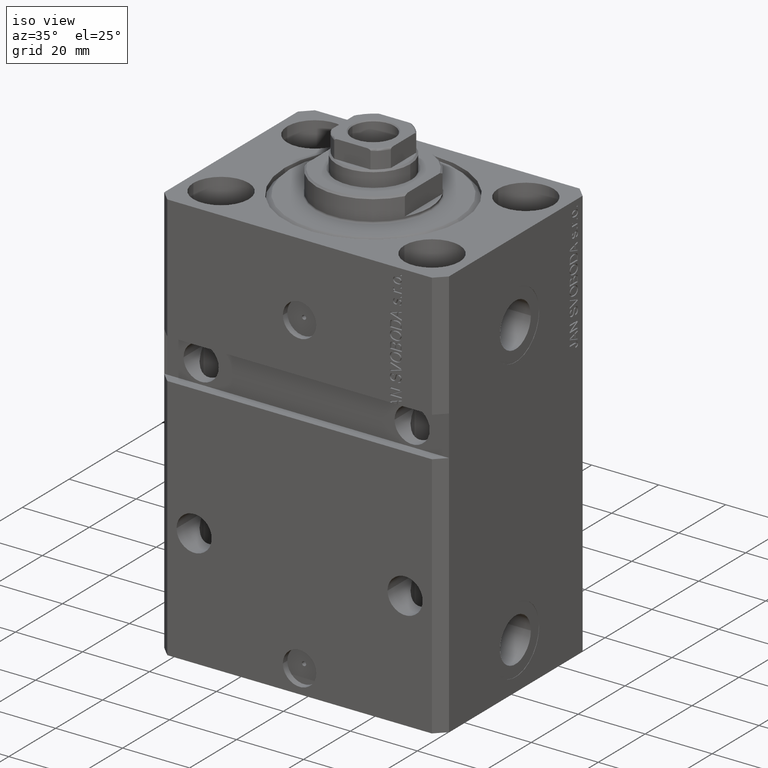
[diagram: clean part render]
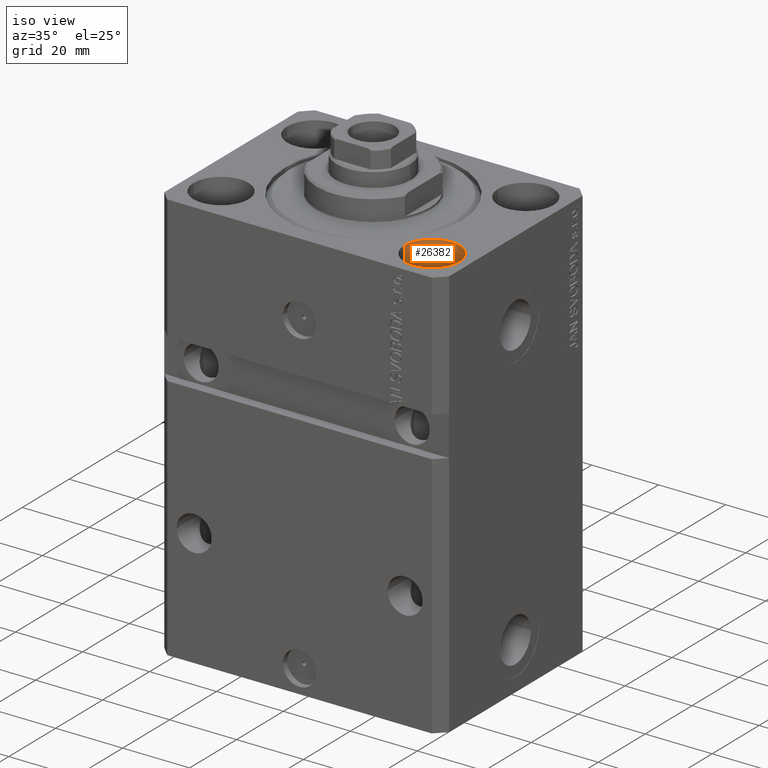
[diagram: same view with one face highlighted and labeled with its STEP entity id]
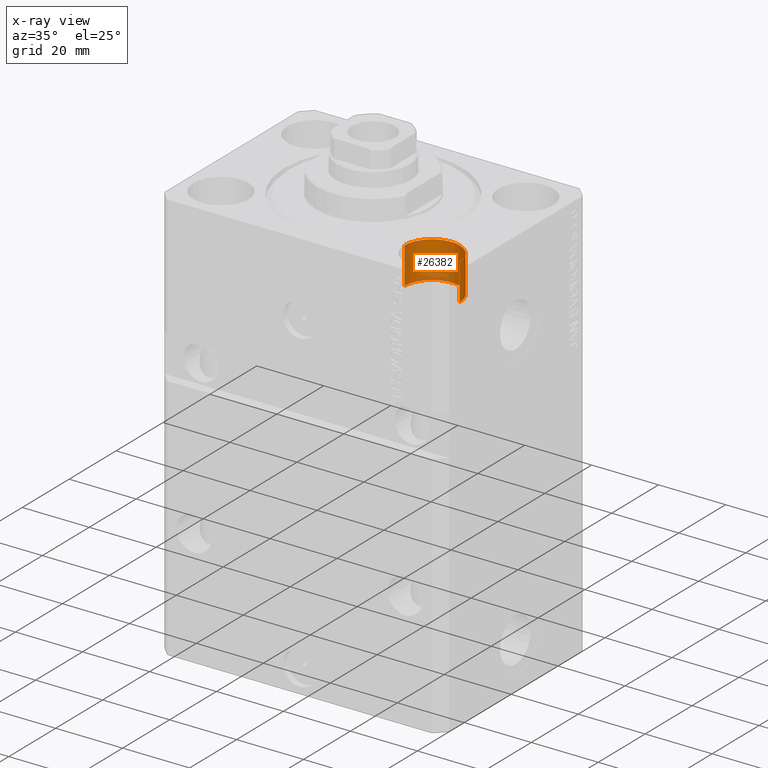
[diagram: x-ray of the same camera — body ghosted, the highlighted face saturated]
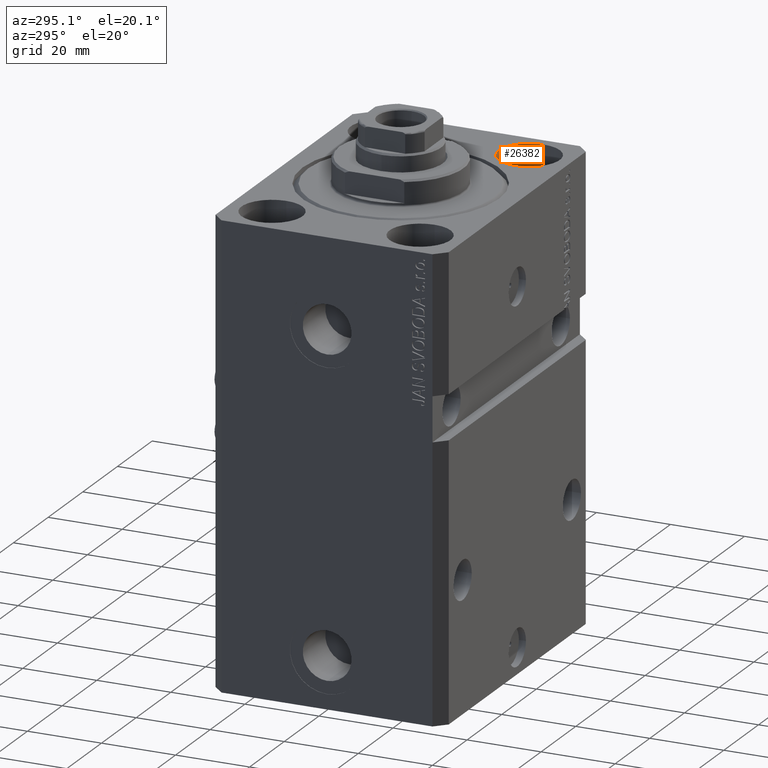
[diagram: same view with one face highlighted and labeled with its STEP entity id]
A machine part, iso view. The second image highlights one B-rep face of the part: STEP entity #26382.
The next image is the same camera in x-ray: the body ghosted, the highlighted face saturated — about 9% of this face is hidden behind the body in this view.
A second angle (auxiliary view) of the same face is appended — the face is thin or edge-on in the first view.
In plain terms, the highlighted cylindrical surface (edge-blend (fillet) strip) has radius 8.25 mm, axis along (0, 0, 1).
Its self-contained STEP definition (entity closure, byte-faithful):
#327 = CARTESIAN_POINT ( 'NONE',  ( 31.50000000000000000, -20.00000000000000000, -11.00000000000000000 ) ) ;
#709 = LINE ( 'NONE', #15709, #34811 ) ;
#1998 = CARTESIAN_POINT ( 'NONE',  ( 23.25000000000000355, -20.00000000000000000, -11.00000000000000000 ) ) ;
#2237 = LINE ( 'NONE', #1998, #4217 ) ;
#3343 = DIRECTION ( 'NONE',  ( -0.000000000000000000, -0.000000000000000000, 1.000000000000000000 ) ) ;
#3503 = EDGE_CURVE ( 'NONE', #40766, #36043, #4810, .T. ) ;
#3777 = CARTESIAN_POINT ( 'NONE',  ( 23.25000000000000355, -20.00000000000000000, 0.000000000000000000 ) ) ;
#4059 = ORIENTED_EDGE ( 'NONE', *, *, #3503, .F. ) ;
#4217 = VECTOR ( 'NONE', #39134, 1000.000000000000000 ) ;
#4810 = CIRCLE ( 'NONE', #6390, 8.249999999999992895 ) ;
#6390 = AXIS2_PLACEMENT_3D ( 'NONE', #327, #42366, #7939 ) ;
#6929 = ORIENTED_EDGE ( 'NONE', *, *, #8731, .F. ) ;
#7939 = DIRECTION ( 'NONE',  ( 1.000000000000000000, 0.000000000000000000, 0.000000000000000000 ) ) ;
#8731 = EDGE_CURVE ( 'NONE', #36043, #19932, #2237, .T. ) ;
#8974 = AXIS2_PLACEMENT_3D ( 'NONE', #45984, #20170, #22872 ) ;
#10022 = DIRECTION ( 'NONE',  ( 1.000000000000000000, 0.000000000000000000, 0.000000000000000000 ) ) ;
#14435 = CARTESIAN_POINT ( 'NONE',  ( 31.50000000000000000, -20.00000000000000000, -11.00000000000000000 ) ) ;
#15709 = CARTESIAN_POINT ( 'NONE',  ( 39.74999999999999289, -20.00000000000000000, -11.00000000000000000 ) ) ;
#18595 = ORIENTED_EDGE ( 'NONE', *, *, #29767, .T. ) ;
#19932 = VERTEX_POINT ( 'NONE', #3777 ) ;
#20170 = DIRECTION ( 'NONE',  ( 0.000000000000000000, 0.000000000000000000, 1.000000000000000000 ) ) ;
#22872 = DIRECTION ( 'NONE',  ( 1.000000000000000000, 0.000000000000000000, 0.000000000000000000 ) ) ;
#26246 = CIRCLE ( 'NONE', #8974, 8.249999999999992895 ) ;
#26382 = ADVANCED_FACE ( 'NONE', ( #36805 ), #48118, .F. ) ;
#28345 = CARTESIAN_POINT ( 'NONE',  ( 39.74999999999999289, -20.00000000000000000, -11.00000000000000000 ) ) ;
#29767 = EDGE_CURVE ( 'NONE', #40766, #30460, #709, .T. ) ;
#30086 = AXIS2_PLACEMENT_3D ( 'NONE', #14435, #3343, #10022 ) ;
#30460 = VERTEX_POINT ( 'NONE', #46093 ) ;
#30728 = DIRECTION ( 'NONE',  ( -0.000000000000000000, -0.000000000000000000, 1.000000000000000000 ) ) ;
#32884 = EDGE_CURVE ( 'NONE', #30460, #19932, #26246, .T. ) ;
#34811 = VECTOR ( 'NONE', #30728, 1000.000000000000000 ) ;
#34938 = CARTESIAN_POINT ( 'NONE',  ( 23.25000000000000355, -20.00000000000000000, -11.00000000000000000 ) ) ;
#36043 = VERTEX_POINT ( 'NONE', #34938 ) ;
#36246 = EDGE_LOOP ( 'NONE', ( #6929, #4059, #18595, #38854 ) ) ;
#36805 = FACE_OUTER_BOUND ( 'NONE', #36246, .T. ) ;
#38854 = ORIENTED_EDGE ( 'NONE', *, *, #32884, .T. ) ;
#39134 = DIRECTION ( 'NONE',  ( -0.000000000000000000, -0.000000000000000000, 1.000000000000000000 ) ) ;
#40766 = VERTEX_POINT ( 'NONE', #28345 ) ;
#42366 = DIRECTION ( 'NONE',  ( 0.000000000000000000, 0.000000000000000000, 1.000000000000000000 ) ) ;
#45984 = CARTESIAN_POINT ( 'NONE',  ( 31.50000000000000000, -20.00000000000000000, 0.000000000000000000 ) ) ;
#46093 = CARTESIAN_POINT ( 'NONE',  ( 39.74999999999999289, -20.00000000000000000, 0.000000000000000000 ) ) ;
#48118 = CYLINDRICAL_SURFACE ( 'NONE', #30086, 8.249999999999992895 ) ;